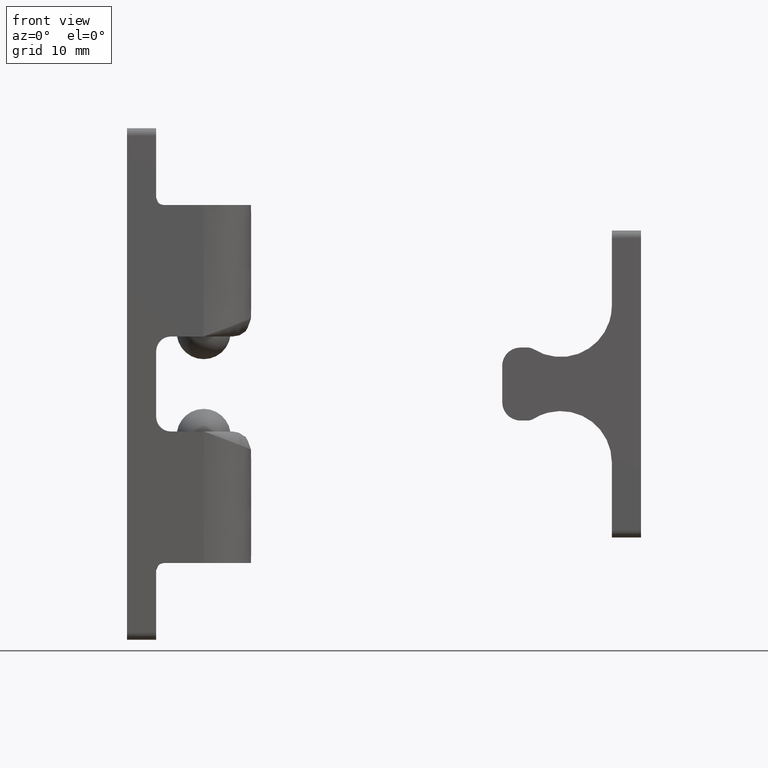
[diagram: clean part render]
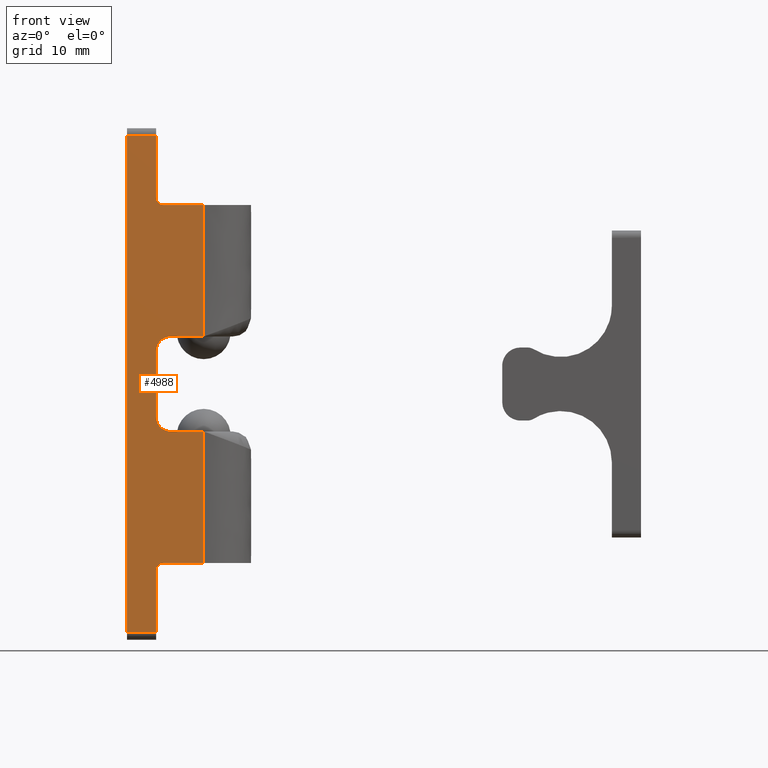
[diagram: same view with one face highlighted and labeled with its STEP entity id]
A machine part, front view. The second image highlights one B-rep face of the part: STEP entity #4988.
In plain terms, the highlighted face is a freeform B-spline surface patch.
Its self-contained STEP definition (entity closure, byte-faithful):
#3697=CARTESIAN_POINT('',(4.0,-6.500000000000000,34.0));
#3698=VERTEX_POINT('',#3697);
#3712=CARTESIAN_POINT('',(4.0,-6.500000000000000,25.500000000000000));
#3713=VERTEX_POINT('',#3712);
#3714=CARTESIAN_POINT('',(4.0,-6.500000000000000,25.500000000000000));
#3715=CARTESIAN_POINT('',(4.0,-6.500000000000000,34.0));
#3716=QUASI_UNIFORM_CURVE('',1,(#3714,#3715),.UNSPECIFIED.,.F.,.U.);
#3717=EDGE_CURVE('',#3713,#3698,#3716,.T.);
#3791=CARTESIAN_POINT('',(1.193991E-015,-6.500000000000000,-34.0));
#3792=VERTEX_POINT('',#3791);
#3806=CARTESIAN_POINT('',(1.193991E-015,-6.500000000000000,34.0));
#3807=VERTEX_POINT('',#3806);
#3808=CARTESIAN_POINT('',(1.193991E-015,-6.500000000000000,-34.0));
#3809=CARTESIAN_POINT('',(1.193991E-015,-6.500000000000000,34.0));
#3810=QUASI_UNIFORM_CURVE('',1,(#3808,#3809),.UNSPECIFIED.,.F.,.U.);
#3811=EDGE_CURVE('',#3792,#3807,#3810,.T.);
#3860=CARTESIAN_POINT('',(4.0,-6.500000000000000,-4.499999999999949));
#3861=VERTEX_POINT('',#3860);
#3862=CARTESIAN_POINT('',(4.0,-6.500000000000000,4.499999999999949));
#3863=VERTEX_POINT('',#3862);
#3864=CARTESIAN_POINT('',(4.0,-6.500000000000000,-4.499999999999949));
#3865=CARTESIAN_POINT('',(4.0,-6.500000000000000,4.499999999999949));
#3866=QUASI_UNIFORM_CURVE('',1,(#3864,#3865),.UNSPECIFIED.,.F.,.U.);
#3867=EDGE_CURVE('',#3861,#3863,#3866,.T.);
#3905=CARTESIAN_POINT('',(4.0,-6.500000000000000,-25.500000000000000));
#3906=VERTEX_POINT('',#3905);
#3907=CARTESIAN_POINT('',(5.0,-6.500000000000000,-24.500000000000000));
#3908=VERTEX_POINT('',#3907);
#3909=CARTESIAN_POINT('',(4.0,-6.500000000000000,-25.500000000000000));
#3910=CARTESIAN_POINT('',(4.000000000000000,-6.500000000000001,-24.500000000000004));
#3911=CARTESIAN_POINT('',(5.0,-6.500000000000000,-24.500000000000000));
#3919=(BOUNDED_CURVE()B_SPLINE_CURVE(2,(#3909,#3910,#3911),.UNSPECIFIED.,.F.,.U.)CURVE()GEOMETRIC_REPRESENTATION_ITEM()QUASI_UNIFORM_CURVE()RATIONAL_B_SPLINE_CURVE((1.0,0.707106781186548,1.0))REPRESENTATION_ITEM(''));
#3920=EDGE_CURVE('',#3906,#3908,#3919,.T.);
#4007=CARTESIAN_POINT('',(10.500000000000000,-6.500000000000000,-6.500000000000000));
#4008=VERTEX_POINT('',#4007);
#4128=CARTESIAN_POINT('',(10.500000000000000,-6.500000000000000,6.500000000000000));
#4129=VERTEX_POINT('',#4128);
#4209=CARTESIAN_POINT('',(6.0,-6.500000000000000,-6.500000000000000));
#4210=VERTEX_POINT('',#4209);
#4211=CARTESIAN_POINT('',(6.0,-6.500000000000000,-6.500000000000000));
#4212=CARTESIAN_POINT('',(4.000000000000000,-6.500000000000001,-6.499999999999949));
#4213=CARTESIAN_POINT('',(4.0,-6.500000000000000,-4.499999999999949));
#4221=(BOUNDED_CURVE()B_SPLINE_CURVE(2,(#4211,#4212,#4213),.UNSPECIFIED.,.F.,.U.)CURVE()GEOMETRIC_REPRESENTATION_ITEM()QUASI_UNIFORM_CURVE()RATIONAL_B_SPLINE_CURVE((1.0,0.707106781186548,1.0))REPRESENTATION_ITEM(''));
#4222=EDGE_CURVE('',#4210,#3861,#4221,.T.);
#4274=CARTESIAN_POINT('',(10.500000000000000,-6.500000000000000,-24.500000000000000));
#4275=VERTEX_POINT('',#4274);
#4276=CARTESIAN_POINT('',(10.500000000000000,-6.500000000000000,-24.500000000000000));
#4277=CARTESIAN_POINT('',(10.500000000000000,-6.500000000000000,-6.500000000000000));
#4278=QUASI_UNIFORM_CURVE('',1,(#4276,#4277),.UNSPECIFIED.,.F.,.U.);
#4279=EDGE_CURVE('',#4275,#4008,#4278,.T.);
#4529=CARTESIAN_POINT('',(4.0,-6.500000000000000,-34.0));
#4530=VERTEX_POINT('',#4529);
#4544=CARTESIAN_POINT('',(1.193991E-015,-6.500000000000000,-34.0));
#4545=CARTESIAN_POINT('',(4.0,-6.500000000000000,-34.0));
#4546=QUASI_UNIFORM_CURVE('',1,(#4544,#4545),.UNSPECIFIED.,.F.,.U.);
#4547=EDGE_CURVE('',#3792,#4530,#4546,.T.);
#4602=CARTESIAN_POINT('',(6.0,-6.500000000000000,-6.500000000000000));
#4603=CARTESIAN_POINT('',(10.500000000000000,-6.500000000000000,-6.500000000000000));
#4604=QUASI_UNIFORM_CURVE('',1,(#4602,#4603),.UNSPECIFIED.,.F.,.U.);
#4605=EDGE_CURVE('',#4210,#4008,#4604,.T.);
#4626=CARTESIAN_POINT('',(10.500000000000000,-6.500000000000000,-24.500000000000000));
#4627=CARTESIAN_POINT('',(5.0,-6.500000000000000,-24.500000000000000));
#4628=QUASI_UNIFORM_CURVE('',1,(#4626,#4627),.UNSPECIFIED.,.F.,.U.);
#4629=EDGE_CURVE('',#4275,#3908,#4628,.T.);
#4686=CARTESIAN_POINT('',(4.0,-6.500000000000000,34.0));
#4687=CARTESIAN_POINT('',(1.193991E-015,-6.500000000000000,34.0));
#4688=QUASI_UNIFORM_CURVE('',1,(#4686,#4687),.UNSPECIFIED.,.F.,.U.);
#4689=EDGE_CURVE('',#3698,#3807,#4688,.T.);
#4710=CARTESIAN_POINT('',(5.0,-6.500000000000000,24.500000000000000));
#4711=VERTEX_POINT('',#4710);
#4712=CARTESIAN_POINT('',(5.0,-6.500000000000000,24.500000000000000));
#4713=CARTESIAN_POINT('',(4.000000000000000,-6.500000000000001,24.500000000000004));
#4714=CARTESIAN_POINT('',(4.0,-6.500000000000000,25.500000000000000));
#4722=(BOUNDED_CURVE()B_SPLINE_CURVE(2,(#4712,#4713,#4714),.UNSPECIFIED.,.F.,.U.)CURVE()GEOMETRIC_REPRESENTATION_ITEM()QUASI_UNIFORM_CURVE()RATIONAL_B_SPLINE_CURVE((1.0,0.707106781186548,1.0))REPRESENTATION_ITEM(''));
#4723=EDGE_CURVE('',#4711,#3713,#4722,.T.);
#4768=CARTESIAN_POINT('',(6.0,-6.500000000000000,6.500000000000000));
#4769=VERTEX_POINT('',#4768);
#4770=CARTESIAN_POINT('',(4.0,-6.500000000000000,4.499999999999949));
#4771=CARTESIAN_POINT('',(4.000000000000000,-6.500000000000001,6.500000000000001));
#4772=CARTESIAN_POINT('',(6.0,-6.500000000000000,6.500000000000000));
#4780=(BOUNDED_CURVE()B_SPLINE_CURVE(2,(#4770,#4771,#4772),.UNSPECIFIED.,.F.,.U.)CURVE()GEOMETRIC_REPRESENTATION_ITEM()QUASI_UNIFORM_CURVE()RATIONAL_B_SPLINE_CURVE((1.0,0.707106781186548,1.0))REPRESENTATION_ITEM(''));
#4781=EDGE_CURVE('',#3863,#4769,#4780,.T.);
#4825=CARTESIAN_POINT('',(10.500000000000000,-6.500000000000000,24.500000000000000));
#4826=VERTEX_POINT('',#4825);
#4827=CARTESIAN_POINT('',(10.500000000000000,-6.500000000000000,6.500000000000000));
#4828=CARTESIAN_POINT('',(10.500000000000000,-6.500000000000000,24.500000000000000));
#4829=QUASI_UNIFORM_CURVE('',1,(#4827,#4828),.UNSPECIFIED.,.F.,.U.);
#4830=EDGE_CURVE('',#4129,#4826,#4829,.T.);
#4879=CARTESIAN_POINT('',(6.0,-6.500000000000000,6.500000000000000));
#4880=CARTESIAN_POINT('',(10.500000000000000,-6.500000000000000,6.500000000000000));
#4881=QUASI_UNIFORM_CURVE('',1,(#4879,#4880),.UNSPECIFIED.,.F.,.U.);
#4882=EDGE_CURVE('',#4769,#4129,#4881,.T.);
#4903=CARTESIAN_POINT('',(10.500000000000000,-6.500000000000000,24.500000000000000));
#4904=CARTESIAN_POINT('',(5.0,-6.500000000000000,24.500000000000000));
#4905=QUASI_UNIFORM_CURVE('',1,(#4903,#4904),.UNSPECIFIED.,.F.,.U.);
#4906=EDGE_CURVE('',#4826,#4711,#4905,.T.);
#4961=CARTESIAN_POINT('',(11.024474979648961,-6.500000000000000,37.396599868202813));
#4962=CARTESIAN_POINT('',(-0.524475261280909,-6.500000000000000,37.396599868202813));
#4963=CARTESIAN_POINT('',(11.024474979648961,-6.500000000000000,-37.396601692104937));
#4964=CARTESIAN_POINT('',(-0.524475261280909,-6.500000000000000,-37.396601692104937));
#4965=B_SPLINE_SURFACE_WITH_KNOTS('',1,1,((#4961,#4963),(#4962,#4964)),.UNSPECIFIED.,.F.,.F.,.U.,(2,2),(2,2),(0.0,11.548950240929869),(0.0,74.793201560307750),.UNSPECIFIED.);
#4966=ORIENTED_EDGE('',*,*,#4629,.F.);
#4967=ORIENTED_EDGE('',*,*,#4279,.T.);
#4968=ORIENTED_EDGE('',*,*,#4605,.F.);
#4969=ORIENTED_EDGE('',*,*,#4222,.T.);
#4970=ORIENTED_EDGE('',*,*,#3867,.T.);
#4971=ORIENTED_EDGE('',*,*,#4781,.T.);
#4972=ORIENTED_EDGE('',*,*,#4882,.T.);
#4973=ORIENTED_EDGE('',*,*,#4830,.T.);
#4974=ORIENTED_EDGE('',*,*,#4906,.T.);
#4975=ORIENTED_EDGE('',*,*,#4723,.T.);
#4976=ORIENTED_EDGE('',*,*,#3717,.T.);
#4977=ORIENTED_EDGE('',*,*,#4689,.T.);
#4978=ORIENTED_EDGE('',*,*,#3811,.F.);
#4979=ORIENTED_EDGE('',*,*,#4547,.T.);
#4980=CARTESIAN_POINT('',(4.0,-6.500000000000000,-34.0));
#4981=CARTESIAN_POINT('',(4.0,-6.500000000000000,-25.500000000000000));
#4982=QUASI_UNIFORM_CURVE('',1,(#4980,#4981),.UNSPECIFIED.,.F.,.U.);
#4983=EDGE_CURVE('',#4530,#3906,#4982,.T.);
#4984=ORIENTED_EDGE('',*,*,#4983,.T.);
#4985=ORIENTED_EDGE('',*,*,#3920,.T.);
#4986=EDGE_LOOP('',(#4966,#4967,#4968,#4969,#4970,#4971,#4972,#4973,#4974,#4975,#4976,#4977,#4978,#4979,#4984,#4985));
#4987=FACE_OUTER_BOUND('',#4986,.T.);
#4988=ADVANCED_FACE('',(#4987),#4965,.T.);